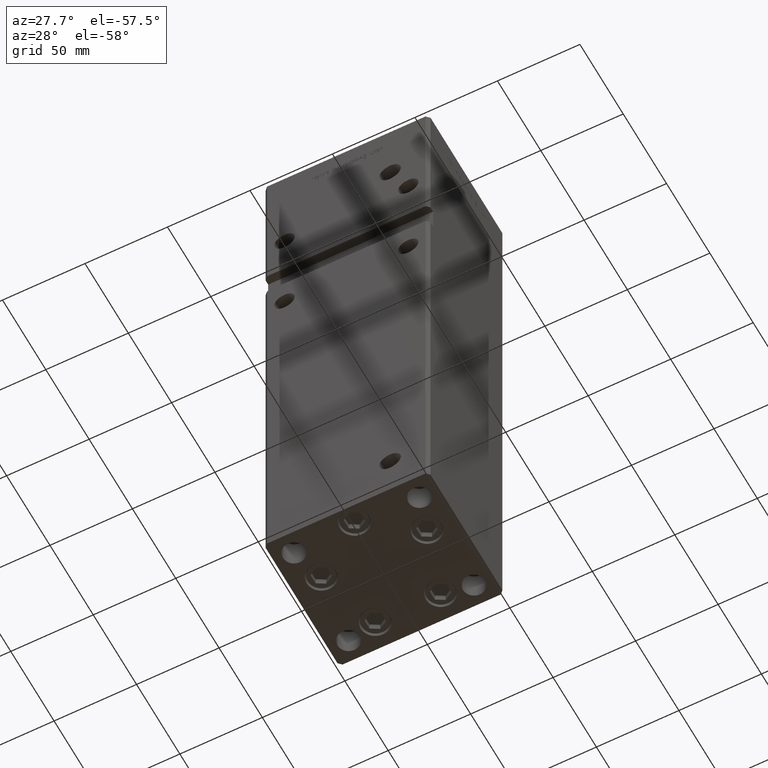
[diagram: clean part render]
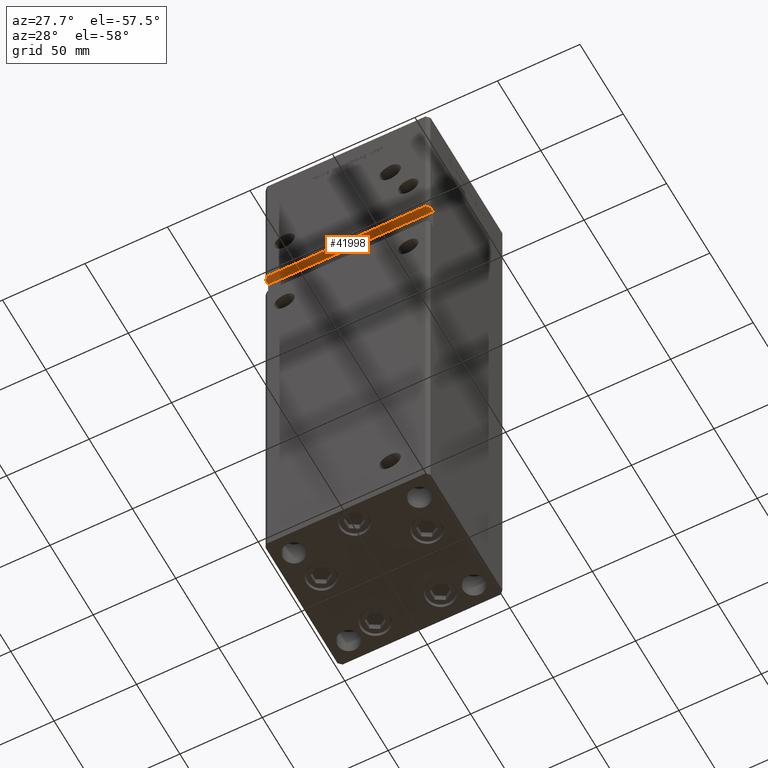
[diagram: same view with one face highlighted and labeled with its STEP entity id]
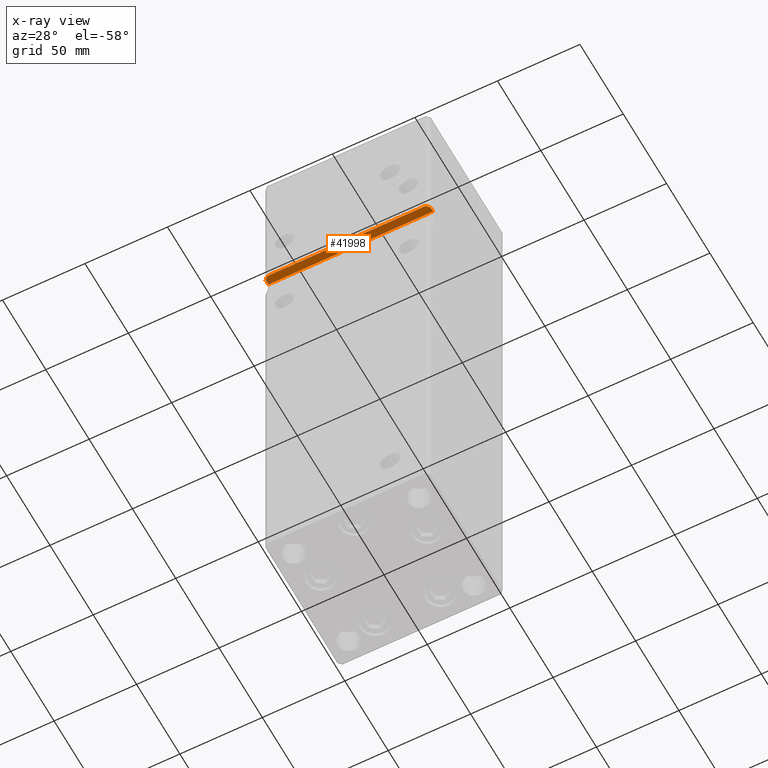
[diagram: x-ray of the same camera — body ghosted, the highlighted face saturated]
A machine part, auxiliary view. The second image highlights one B-rep face of the part: STEP entity #41998.
The next image is the same camera in x-ray: the body ghosted, the highlighted face saturated — about 0% of this face is hidden behind the body in this view.
In plain terms, the highlighted planar face has unit normal (0, 0, 1).
Its self-contained STEP definition (entity closure, byte-faithful):
#1402 = CARTESIAN_POINT ( 'NONE',  ( -49.99999999999998579, -38.50000000000000000, 248.0000000000000000 ) ) ;
#1462 = VECTOR ( 'NONE', #47273, 1000.000000000000000 ) ;
#4398 = DIRECTION ( 'NONE',  ( 0.000000000000000000, 0.000000000000000000, 1.000000000000000000 ) ) ;
#4774 = DIRECTION ( 'NONE',  ( -1.000000000000000000, -0.000000000000000000, -0.000000000000000000 ) ) ;
#6331 = VERTEX_POINT ( 'NONE', #49917 ) ;
#8849 = VERTEX_POINT ( 'NONE', #29076 ) ;
#10519 = AXIS2_PLACEMENT_3D ( 'NONE', #29944, #4398, #20814 ) ;
#12440 = EDGE_CURVE ( 'NONE', #36241, #34931, #16694, .T. ) ;
#12678 = ORIENTED_EDGE ( 'NONE', *, *, #42549, .T. ) ;
#14886 = VECTOR ( 'NONE', #22332, 1000.000000000000000 ) ;
#14933 = CARTESIAN_POINT ( 'NONE',  ( 47.99999999999998579, -43.50000000000000000, 248.0000000000000000 ) ) ;
#16694 = LINE ( 'NONE', #21529, #14886 ) ;
#17029 = FACE_OUTER_BOUND ( 'NONE', #38038, .T. ) ;
#17617 = EDGE_CURVE ( 'NONE', #18944, #36241, #34152, .T. ) ;
#18104 = DIRECTION ( 'NONE',  ( 0.7071067811865474617, -0.7071067811865474617, 0.000000000000000000 ) ) ;
#18944 = VERTEX_POINT ( 'NONE', #34036 ) ;
#20760 = EDGE_CURVE ( 'NONE', #34931, #8849, #22154, .T. ) ;
#20814 = DIRECTION ( 'NONE',  ( 1.000000000000000000, 0.000000000000000000, -0.000000000000000000 ) ) ;
#21195 = VECTOR ( 'NONE', #18104, 1000.000000000000114 ) ;
#21529 = CARTESIAN_POINT ( 'NONE',  ( -49.99999999999998579, -38.50000000000000000, 248.0000000000000000 ) ) ;
#21898 = CARTESIAN_POINT ( 'NONE',  ( -49.99999999999998579, -41.49999999999999289, 248.0000000000000000 ) ) ;
#22154 = LINE ( 'NONE', #21898, #21195 ) ;
#22332 = DIRECTION ( 'NONE',  ( -0.000000000000000000, -1.000000000000000000, -0.000000000000000000 ) ) ;
#24969 = CARTESIAN_POINT ( 'NONE',  ( 49.99999999999998579, -41.49999999999999289, 248.0000000000000000 ) ) ;
#24997 = VECTOR ( 'NONE', #45626, 1000.000000000000114 ) ;
#25123 = PLANE ( 'NONE',  #10519 ) ;
#29076 = CARTESIAN_POINT ( 'NONE',  ( -47.99999999999998579, -43.50000000000000000, 248.0000000000000000 ) ) ;
#29484 = VECTOR ( 'NONE', #37536, 1000.000000000000000 ) ;
#29500 = LINE ( 'NONE', #50149, #29484 ) ;
#29944 = CARTESIAN_POINT ( 'NONE',  ( -49.99999999999998579, -38.50000000000000000, 248.0000000000000000 ) ) ;
#30654 = CARTESIAN_POINT ( 'NONE',  ( -49.99999999999998579, -38.50000000000000000, 248.0000000000000000 ) ) ;
#30816 = ORIENTED_EDGE ( 'NONE', *, *, #17617, .F. ) ;
#33900 = CARTESIAN_POINT ( 'NONE',  ( -49.99999999999998579, -41.49999999999999289, 248.0000000000000000 ) ) ;
#34036 = CARTESIAN_POINT ( 'NONE',  ( 49.99999999999998579, -38.50000000000000000, 248.0000000000000000 ) ) ;
#34152 = LINE ( 'NONE', #30654, #1462 ) ;
#34931 = VERTEX_POINT ( 'NONE', #33900 ) ;
#35255 = VECTOR ( 'NONE', #4774, 1000.000000000000000 ) ;
#35734 = EDGE_CURVE ( 'NONE', #42724, #8849, #44845, .T. ) ;
#35807 = EDGE_CURVE ( 'NONE', #6331, #42724, #45107, .T. ) ;
#35821 = ORIENTED_EDGE ( 'NONE', *, *, #35734, .T. ) ;
#36241 = VERTEX_POINT ( 'NONE', #1402 ) ;
#37536 = DIRECTION ( 'NONE',  ( -0.000000000000000000, -1.000000000000000000, -0.000000000000000000 ) ) ;
#38038 = EDGE_LOOP ( 'NONE', ( #41660, #30816, #12678, #52682, #35821, #41291 ) ) ;
#41291 = ORIENTED_EDGE ( 'NONE', *, *, #20760, .F. ) ;
#41615 = CARTESIAN_POINT ( 'NONE',  ( -49.99999999999998579, -43.50000000000000000, 248.0000000000000000 ) ) ;
#41660 = ORIENTED_EDGE ( 'NONE', *, *, #12440, .F. ) ;
#41998 = ADVANCED_FACE ( 'NONE', ( #17029 ), #25123, .F. ) ;
#42549 = EDGE_CURVE ( 'NONE', #18944, #6331, #29500, .T. ) ;
#42724 = VERTEX_POINT ( 'NONE', #14933 ) ;
#44845 = LINE ( 'NONE', #41615, #35255 ) ;
#45107 = LINE ( 'NONE', #24969, #24997 ) ;
#45626 = DIRECTION ( 'NONE',  ( -0.7071067811865474617, -0.7071067811865474617, 0.000000000000000000 ) ) ;
#47273 = DIRECTION ( 'NONE',  ( -1.000000000000000000, -0.000000000000000000, -0.000000000000000000 ) ) ;
#49917 = CARTESIAN_POINT ( 'NONE',  ( 49.99999999999998579, -41.49999999999999289, 248.0000000000000000 ) ) ;
#50149 = CARTESIAN_POINT ( 'NONE',  ( 49.99999999999998579, -38.50000000000000000, 248.0000000000000000 ) ) ;
#52682 = ORIENTED_EDGE ( 'NONE', *, *, #35807, .T. ) ;